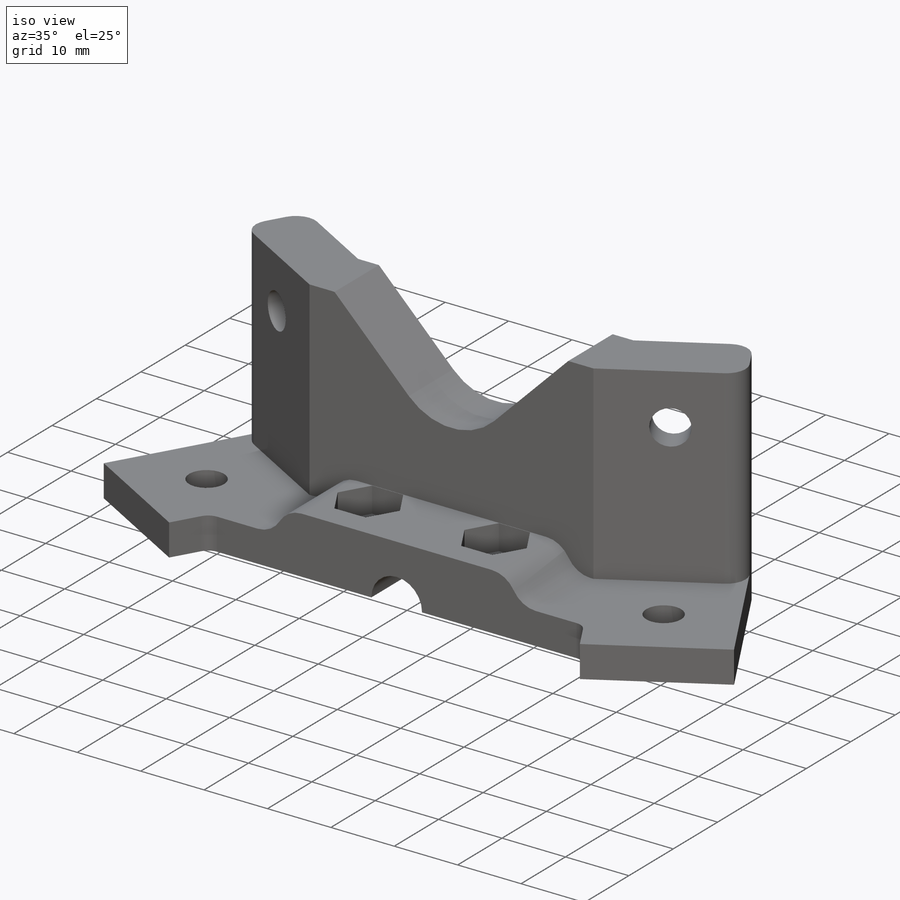
[diagram: iso view]
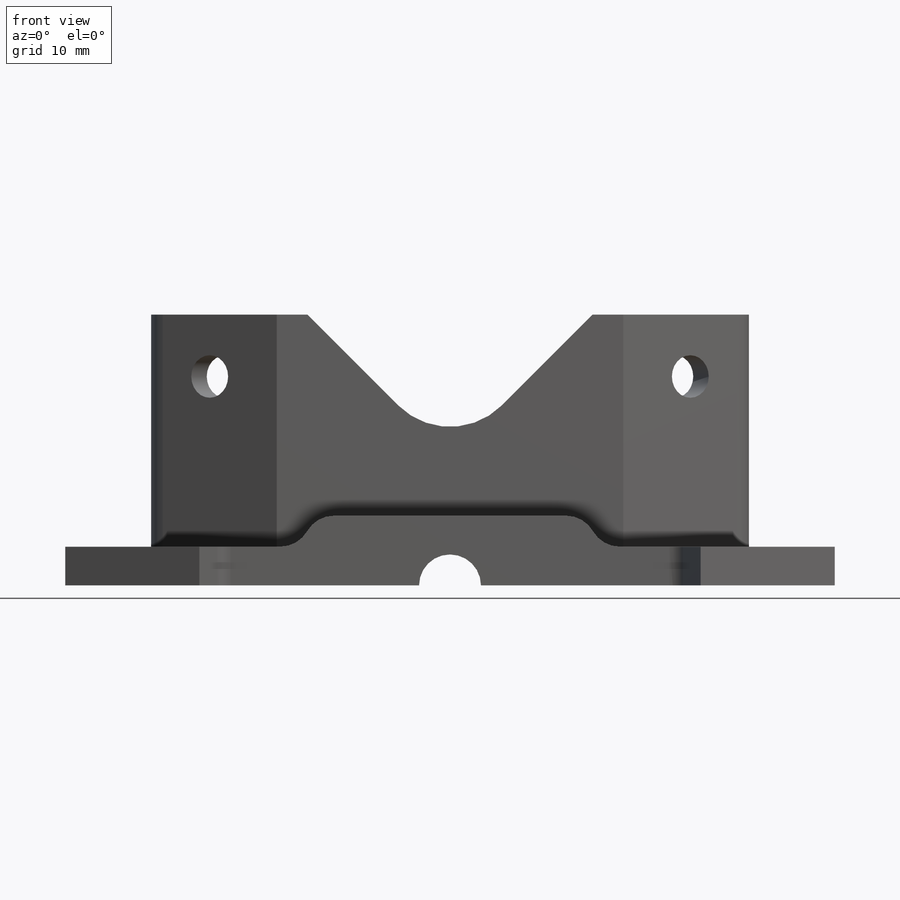
[diagram: front view]
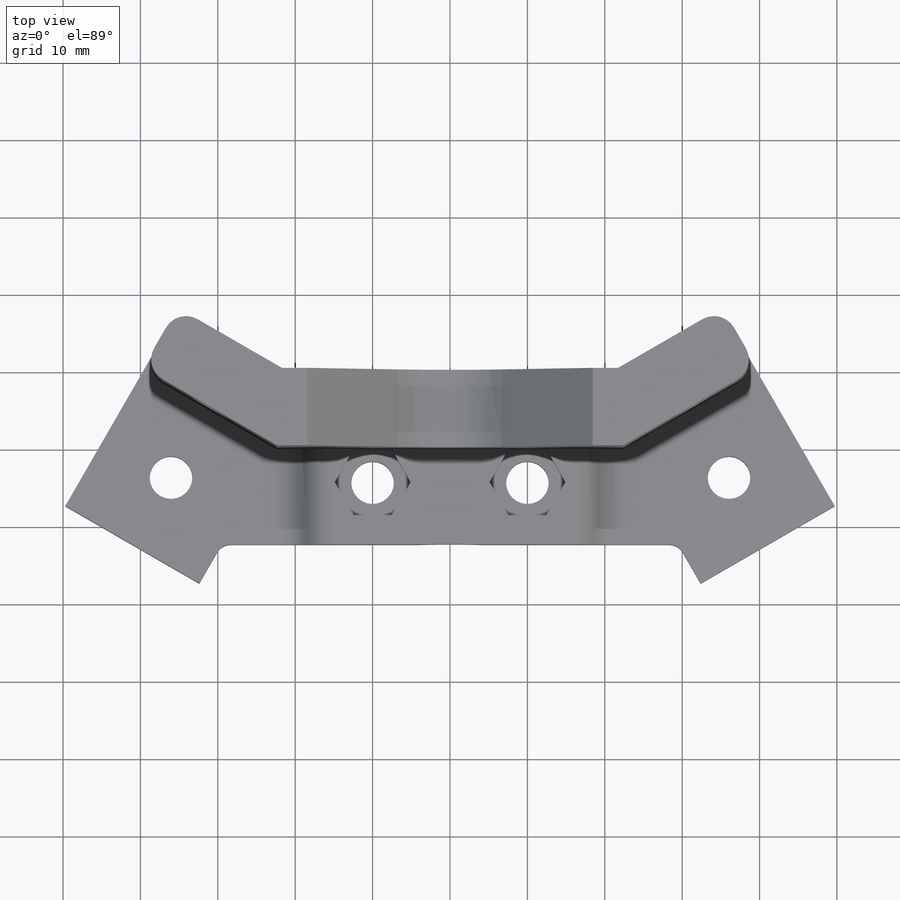
[diagram: top view]
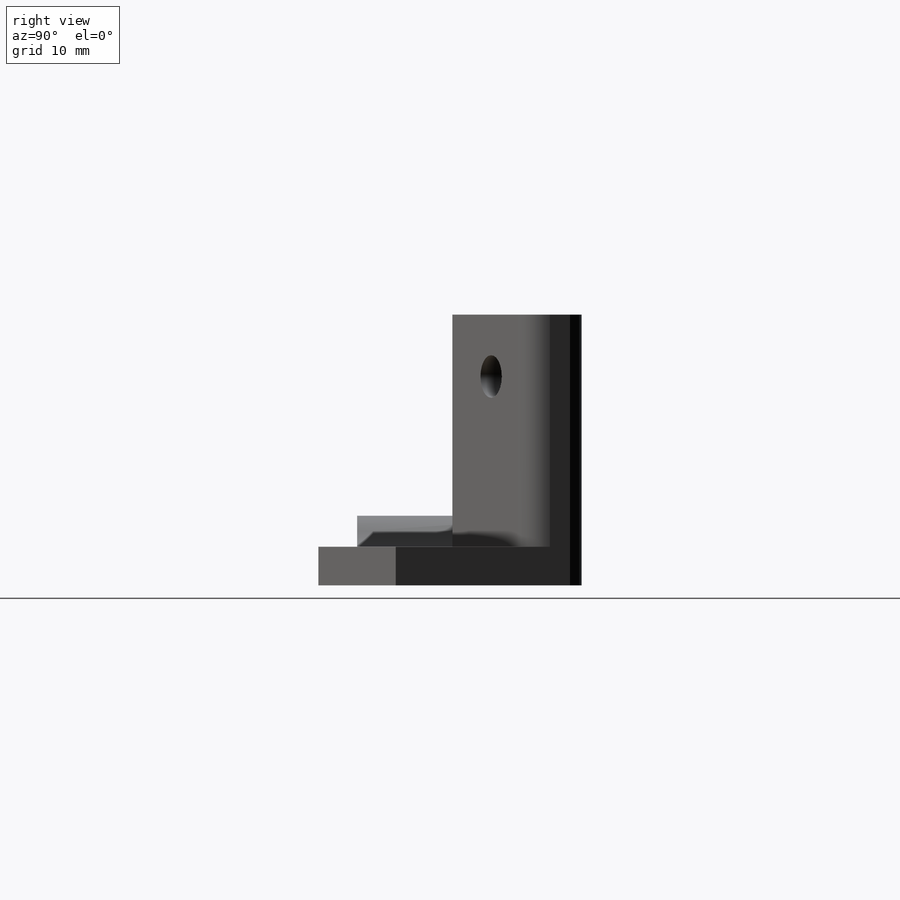
[diagram: right view]
SOLIDWORKS PART (.sldprt)
format: sldprt  version: not decoded by parser v0  size: 321,024 bytes
history: native  units: mm
features: sketch x8, cut_extrude x5, extrude x3, material x1, mirror x1, fillet x1 (+11 scaffold rows collapsed)
feature tree (30):
  scaffold x11  (default folders/planes/origin — collapsed)
  material  "Material <not specified>"
  sketch  "Sketch1"  dims[c1.D3=5.5mm c1.D9=2.0mm c1.D1=~14.377342mm c2.D1=60.0deg c2.D2=~7.200755mm c3.D2=60.0deg c3.D4=72.1033mm c3.D5=10.0mm c3.D6=20.0mm c3.D7=10.0mm c3.D8=5.0mm]
  extrude  "Boss-Extrude1"  Depth=5mm
  sketch  "Sketch2"  dims[D1=1.5mm D2=9.0mm]
  extrude  "Boss-Extrude2"  Depth=30mm
  sketch  "Sketch4"  dims[c1.D3=4.0mm c1.D1=9.0mm c1.D2=30.0mm c2.D1=9.0mm]
  extrude  "Boss-Extrude3"  [1 undecoded]
  sketch  "Sketch5"  dims[c1.D2=19.0mm c1.D3=8.0mm c1.D4=4.0mm c1.D1=30.0mm c1.D5=30.48mm c1.D6=30.48mm c2.D4=35.0mm c3.D4=45.0deg]
  cut_extrude  "Cut-Extrude1"  [1 undecoded]
  sketch  "Sketch7"  dims[D2=5.5mm D1=8.0mm]
  cut_extrude  "Cut-Extrude3"  [1 undecoded]
  sketch  "Sketch8"  dims[D1=12.0mm]
  cut_extrude  "Cut-Extrude4"  Depth=4mm
  mirror  "Mirror1"
  sketch  "Sketch9"  dims[D3=5.5mm D1=20.0mm D2=~14.320508mm]
  cut_extrude  "Cut-Extrude5"  [1 undecoded]
  sketch  "Sketch10"  dims[D1=8.5mm]
  cut_extrude  "Cut-Extrude6"  Depth=5mm
  fillet  "Fillet2"  Radius=3mm
decode coverage: 13 of 18 modeling features carry decoded parameters
note: ~ marks probable driven/reference dimensions
note: 4 parameter values undecoded
summary: no parameter record found for 4 features
note: suppression state not decoded; provenance and decode notes live in map.json
